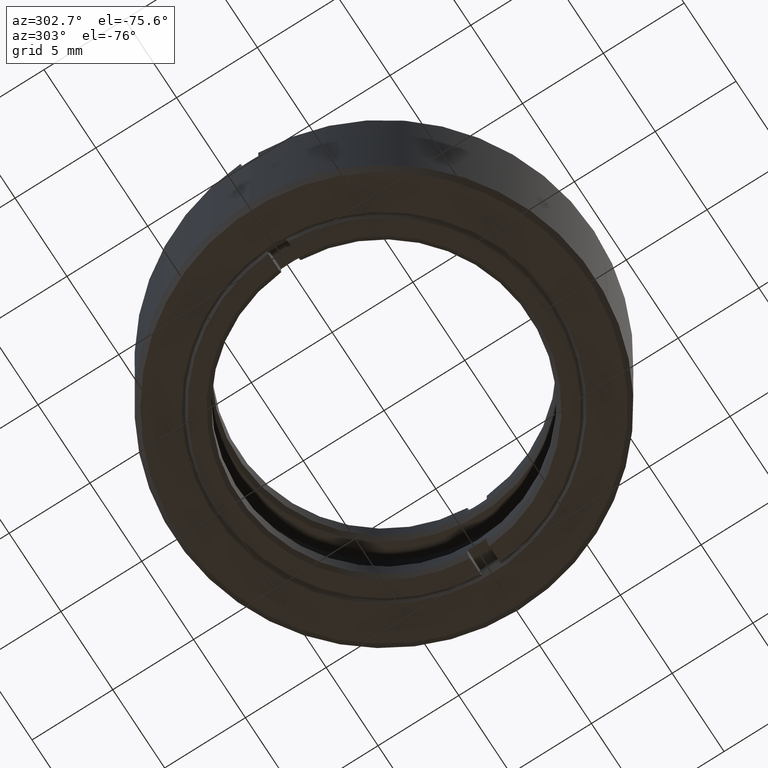
[diagram: clean part render]
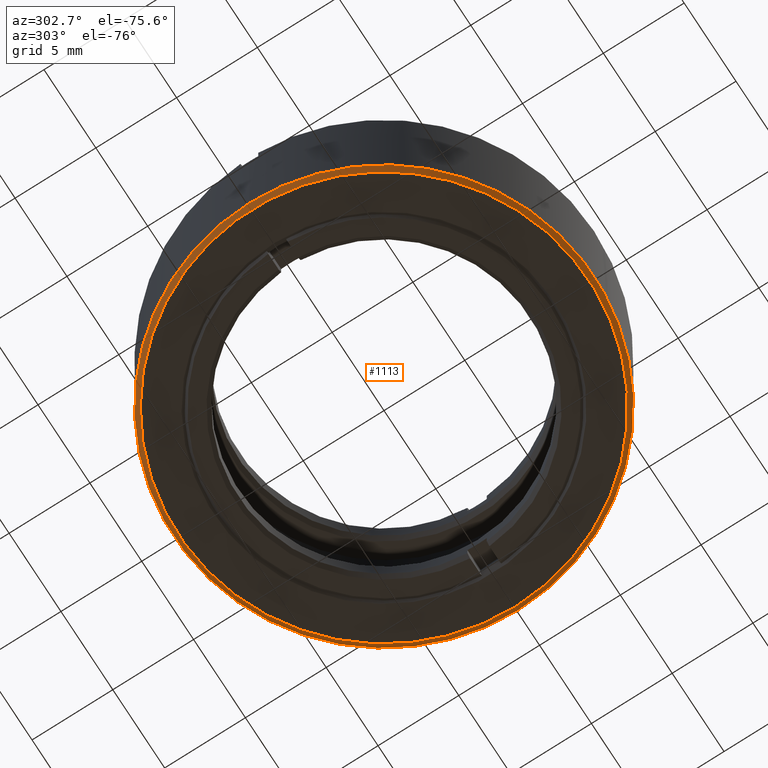
[diagram: same view with one face highlighted and labeled with its STEP entity id]
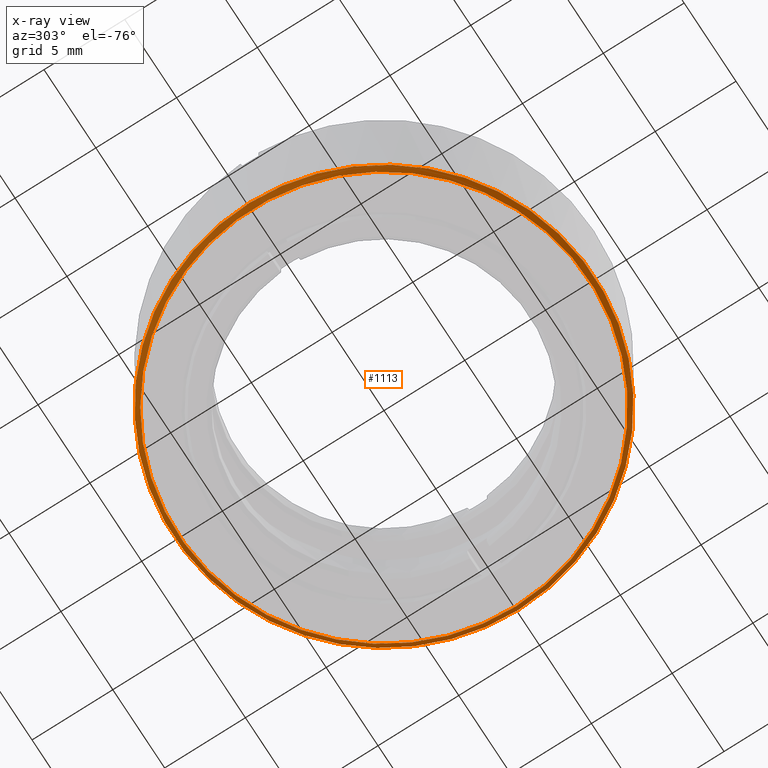
[diagram: x-ray of the same camera — body ghosted, the highlighted face saturated]
A machine part, auxiliary view. The second image highlights one B-rep face of the part: STEP entity #1113.
The next image is the same camera in x-ray: the body ghosted, the highlighted face saturated — about 0% of this face is hidden behind the body in this view.
In plain terms, the highlighted conical surface has half-angle 45 deg.
Its self-contained STEP definition (entity closure, byte-faithful):
#47 = EDGE_CURVE ( 'NONE', #1429, #1429, #965, .T. ) ;
#231 = DIRECTION ( 'NONE',  ( 0.000000000000000000, 0.000000000000000000, 1.000000000000000000 ) ) ;
#336 = FACE_OUTER_BOUND ( 'NONE', #1287, .T. ) ;
#352 = AXIS2_PLACEMENT_3D ( 'NONE', #1438, #1428, #570 ) ;
#366 = VERTEX_POINT ( 'NONE', #1453 ) ;
#477 = AXIS2_PLACEMENT_3D ( 'NONE', #497, #231, #827 ) ;
#483 = CIRCLE ( 'NONE', #1386, 12.69999999999999929 ) ;
#497 = CARTESIAN_POINT ( 'NONE',  ( 0.000000000000000000, 0.000000000000000000, -4.700000000000000178 ) ) ;
#570 = DIRECTION ( 'NONE',  ( 1.000000000000000000, 0.000000000000000000, 0.000000000000000000 ) ) ;
#650 = DIRECTION ( 'NONE',  ( 1.000000000000000000, 0.000000000000000000, 0.000000000000000000 ) ) ;
#750 = CARTESIAN_POINT ( 'NONE',  ( 0.000000000000000000, 0.000000000000000000, -5.000000000000000888 ) ) ;
#827 = DIRECTION ( 'NONE',  ( -1.000000000000000000, 0.000000000000000000, 0.000000000000000000 ) ) ;
#965 = CIRCLE ( 'NONE', #477, 13.00000000000000355 ) ;
#1065 = CARTESIAN_POINT ( 'NONE',  ( -13.00000000000000355, 0.000000000000000000, -4.700000000000000178 ) ) ;
#1096 = ORIENTED_EDGE ( 'NONE', *, *, #47, .F. ) ;
#1113 = ADVANCED_FACE ( 'NONE', ( #336, #1422 ), #1491, .T. ) ;
#1123 = ORIENTED_EDGE ( 'NONE', *, *, #1404, .T. ) ;
#1239 = EDGE_LOOP ( 'NONE', ( #1123 ) ) ;
#1278 = DIRECTION ( 'NONE',  ( 0.000000000000000000, -0.000000000000000000, 1.000000000000000000 ) ) ;
#1287 = EDGE_LOOP ( 'NONE', ( #1096 ) ) ;
#1386 = AXIS2_PLACEMENT_3D ( 'NONE', #750, #1278, #650 ) ;
#1404 = EDGE_CURVE ( 'NONE', #366, #366, #483, .T. ) ;
#1422 = FACE_BOUND ( 'NONE', #1239, .T. ) ;
#1428 = DIRECTION ( 'NONE',  ( 0.000000000000000000, -0.000000000000000000, 1.000000000000000000 ) ) ;
#1429 = VERTEX_POINT ( 'NONE', #1065 ) ;
#1438 = CARTESIAN_POINT ( 'NONE',  ( 0.000000000000000000, 0.000000000000000000, -4.699999999999998401 ) ) ;
#1453 = CARTESIAN_POINT ( 'NONE',  ( 12.69999999999999929, 0.000000000000000000, -5.000000000000000888 ) ) ;
#1491 = CONICAL_SURFACE ( 'NONE', #352, 13.00000000000000533, 0.7853981633974526089 ) ;